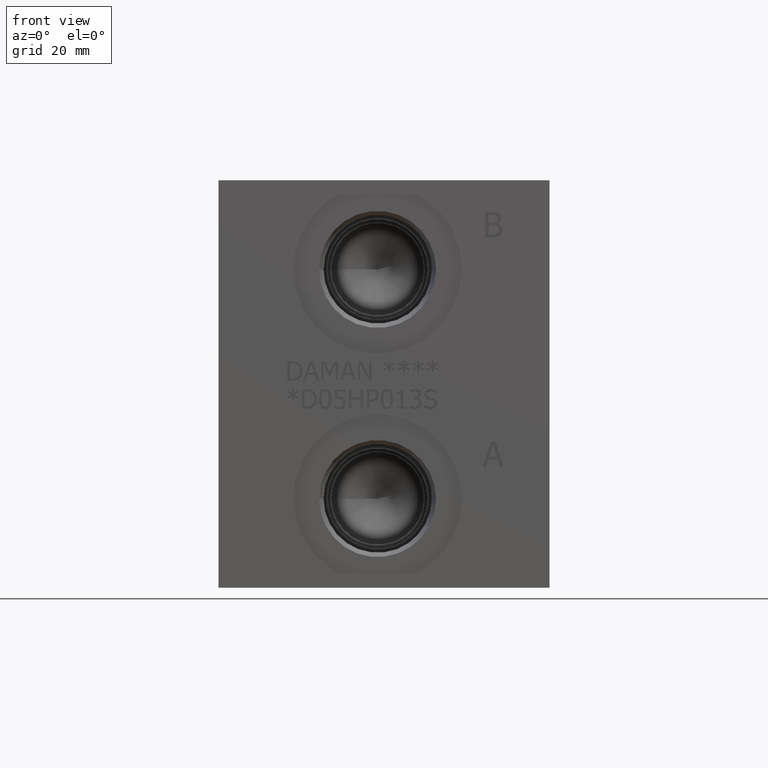
[diagram: clean part render]
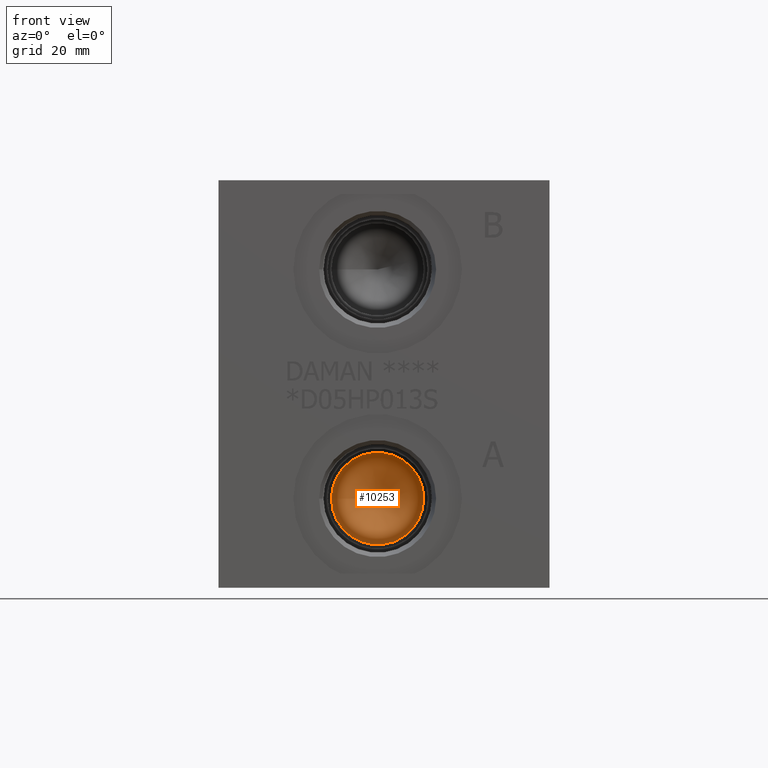
[diagram: same view with one face highlighted and labeled with its STEP entity id]
A machine part, front view. The second image highlights one B-rep face of the part: STEP entity #10253.
In plain terms, the highlighted conical surface has half-angle 60 deg.
Its self-contained STEP definition (entity closure, byte-faithful):
#87=CONICAL_SURFACE('',#10782,5.7531,1.0471975511966);
#217=CIRCLE('',#10783,11.5062);
#218=CIRCLE('',#10784,11.5062);
#1227=FACE_OUTER_BOUND('',#1814,.T.);
#1814=EDGE_LOOP('',(#8794,#8795,#8796,#8797));
#2817=LINE('',#17391,#3792);
#3792=VECTOR('',#12779,5.7531);
#4712=VERTEX_POINT('',#17387);
#4713=VERTEX_POINT('',#17388);
#4714=VERTEX_POINT('',#17390);
#6103=EDGE_CURVE('',#4712,#4713,#217,.T.);
#6104=EDGE_CURVE('',#4713,#4714,#2817,.T.);
#6105=EDGE_CURVE('',#4713,#4712,#218,.T.);
#8794=ORIENTED_EDGE('',*,*,#6103,.T.);
#8795=ORIENTED_EDGE('',*,*,#6104,.T.);
#8796=ORIENTED_EDGE('',*,*,#6104,.F.);
#8797=ORIENTED_EDGE('',*,*,#6105,.T.);
#10253=ADVANCED_FACE('',(#1227),#87,.F.);
#10782=AXIS2_PLACEMENT_3D('',#17386,#12775,#12776);
#10783=AXIS2_PLACEMENT_3D('',#17389,#12777,#12778);
#10784=AXIS2_PLACEMENT_3D('',#17392,#12780,#12781);
#12775=DIRECTION('center_axis',(0.,-1.,0.));
#12776=DIRECTION('ref_axis',(1.,0.,0.));
#12777=DIRECTION('center_axis',(0.,-1.,0.));
#12778=DIRECTION('ref_axis',(1.,0.,0.));
#12779=DIRECTION('',(0.866025403784439,0.5,1.06057523872491E-16));
#12780=DIRECTION('center_axis',(0.,-1.,0.));
#12781=DIRECTION('ref_axis',(1.,0.,0.));
#17386=CARTESIAN_POINT('Origin',(39.6748,34.1787738336748,22.225));
#17387=CARTESIAN_POINT('',(51.181,30.85722,22.225));
#17388=CARTESIAN_POINT('',(28.1686,30.85722,22.225));
#17389=CARTESIAN_POINT('Origin',(39.6748,30.85722,22.225));
#17390=CARTESIAN_POINT('',(39.6748,37.5003276673497,22.225));
#17391=CARTESIAN_POINT('',(33.9217,34.1787738336748,22.225));
#17392=CARTESIAN_POINT('Origin',(39.6748,30.85722,22.225));